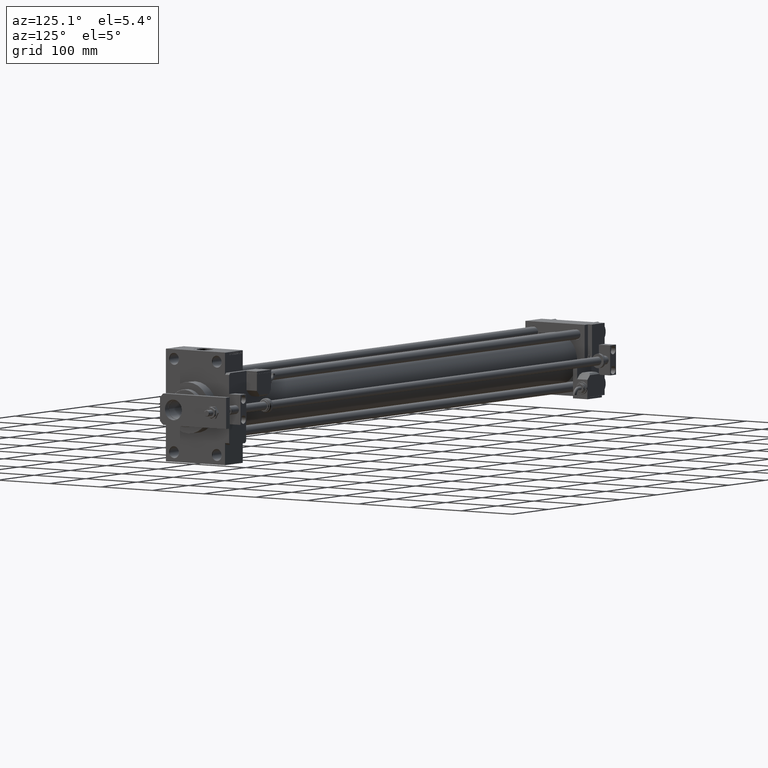
[diagram: clean part render]
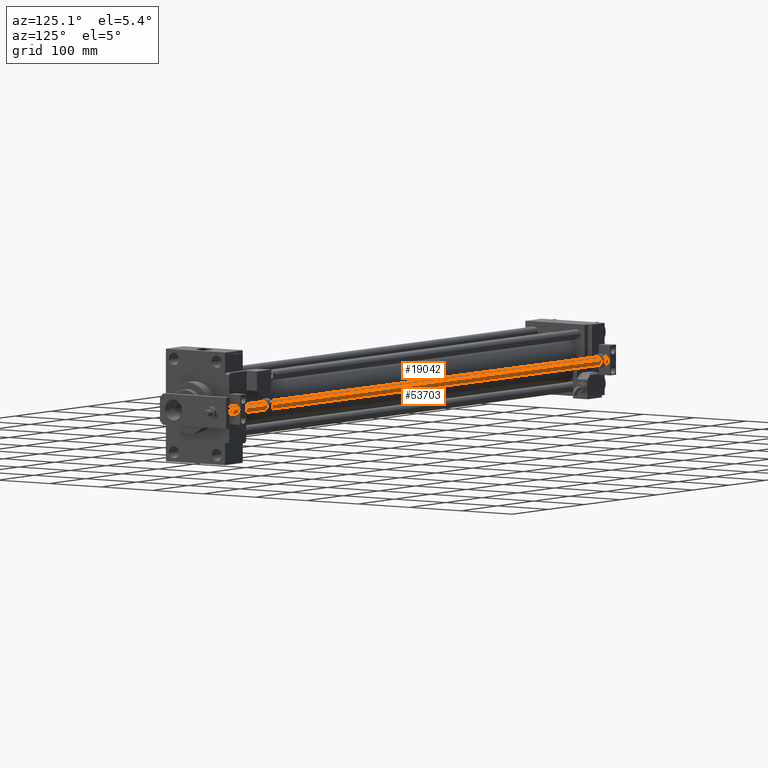
[diagram: same view with one multi-face feature highlighted, each face labeled with its STEP entity id]
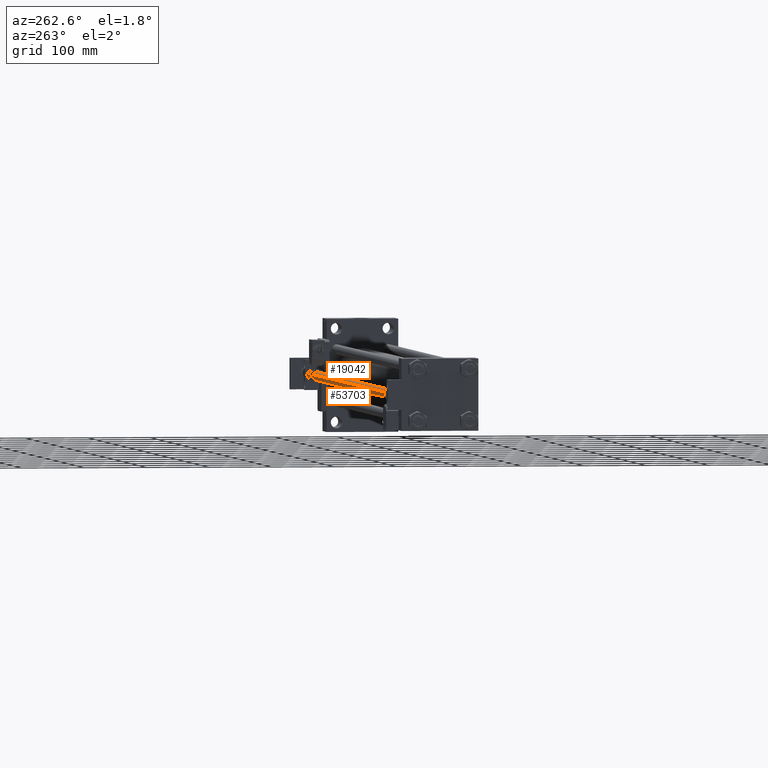
[diagram: same view with one multi-face feature highlighted, each face labeled with its STEP entity id]
A machine part, auxiliary view. The highlighted faces form ONE feature: a constant-radius fillet chain: 2 tangent blend faces with common blend radius 7 mm. The faces share edges in the B-rep.
A second angle (auxiliary view) of the same feature is appended — it is thin or edge-on in the first view.
Their STEP definitions:
[1] entity #53703 (Cylinder):
#592 = DIRECTION ( 'NONE',  ( -0.000000000000000000, -0.000000000000000000, 1.000000000000000000 ) ) ;
#1036 = CARTESIAN_POINT ( 'NONE',  ( 7.000000000000000000, 8.572527594031473190E-16, 0.2999999999999669598 ) ) ;
#1577 = VECTOR ( 'NONE', #36548, 1000.000000000000000 ) ;
#3658 = AXIS2_PLACEMENT_3D ( 'NONE', #14333, #44648, #6189 ) ;
#4226 = CARTESIAN_POINT ( 'NONE',  ( -7.000000000000000000, 0.000000000000000000, 1058.000000000000000 ) ) ;
#5031 = VERTEX_POINT ( 'NONE', #15466 ) ;
#6189 = DIRECTION ( 'NONE',  ( 1.000000000000000000, 0.000000000000000000, 0.000000000000000000 ) ) ;
#6345 = EDGE_CURVE ( 'NONE', #41818, #44196, #12924, .T. ) ;
#6495 = AXIS2_PLACEMENT_3D ( 'NONE', #47116, #39528, #34746 ) ;
#7400 = CARTESIAN_POINT ( 'NONE',  ( -7.000000000000000000, 0.000000000000000000, 0.2999999999999669598 ) ) ;
#9061 = CIRCLE ( 'NONE', #40446, 7.000000000000000000 ) ;
#9952 = ORIENTED_EDGE ( 'NONE', *, *, #50202, .F. ) ;
#11937 = EDGE_CURVE ( 'NONE', #5031, #22187, #44984, .T. ) ;
#12924 = LINE ( 'NONE', #4226, #40055 ) ;
#14333 = CARTESIAN_POINT ( 'NONE',  ( 0.000000000000000000, 0.000000000000000000, 1058.000000000000000 ) ) ;
#15127 = ORIENTED_EDGE ( 'NONE', *, *, #11937, .T. ) ;
#15466 = CARTESIAN_POINT ( 'NONE',  ( 7.000000000000000000, 8.572527594031473190E-16, 1058.000000000000000 ) ) ;
#21350 = DIRECTION ( 'NONE',  ( -0.000000000000000000, -0.000000000000000000, -1.000000000000000000 ) ) ;
#22187 = VERTEX_POINT ( 'NONE', #1036 ) ;
#22745 = DIRECTION ( 'NONE',  ( 1.000000000000000000, 0.000000000000000000, 0.000000000000000000 ) ) ;
#24401 = ORIENTED_EDGE ( 'NONE', *, *, #6345, .F. ) ;
#26683 = CARTESIAN_POINT ( 'NONE',  ( 0.000000000000000000, 0.000000000000000000, 0.2999999999999669598 ) ) ;
#29993 = CYLINDRICAL_SURFACE ( 'NONE', #6495, 7.000000000000000000 ) ;
#34746 = DIRECTION ( 'NONE',  ( -1.000000000000000000, 0.000000000000000000, 0.000000000000000000 ) ) ;
#35165 = EDGE_CURVE ( 'NONE', #22187, #44196, #9061, .T. ) ;
#36548 = DIRECTION ( 'NONE',  ( -0.000000000000000000, -0.000000000000000000, -1.000000000000000000 ) ) ;
#39528 = DIRECTION ( 'NONE',  ( -0.000000000000000000, -0.000000000000000000, -1.000000000000000000 ) ) ;
#40055 = VECTOR ( 'NONE', #21350, 1000.000000000000000 ) ;
#40446 = AXIS2_PLACEMENT_3D ( 'NONE', #26683, #592, #22745 ) ;
#41148 = CARTESIAN_POINT ( 'NONE',  ( -7.000000000000000000, 0.000000000000000000, 1058.000000000000000 ) ) ;
#41818 = VERTEX_POINT ( 'NONE', #41148 ) ;
#42051 = ORIENTED_EDGE ( 'NONE', *, *, #35165, .T. ) ;
#44196 = VERTEX_POINT ( 'NONE', #7400 ) ;
#44648 = DIRECTION ( 'NONE',  ( 0.000000000000000000, 0.000000000000000000, 1.000000000000000000 ) ) ;
#44984 = LINE ( 'NONE', #49462, #1577 ) ;
#47116 = CARTESIAN_POINT ( 'NONE',  ( 0.000000000000000000, 0.000000000000000000, 1058.000000000000000 ) ) ;
#49462 = CARTESIAN_POINT ( 'NONE',  ( 7.000000000000000000, 8.572527594031473190E-16, 1058.000000000000000 ) ) ;
#50202 = EDGE_CURVE ( 'NONE', #5031, #41818, #50306, .T. ) ;
#50306 = CIRCLE ( 'NONE', #3658, 7.000000000000000000 ) ;
#52153 = FACE_OUTER_BOUND ( 'NONE', #54788, .T. ) ;
#53703 = ADVANCED_FACE ( 'NONE', ( #52153 ), #29993, .T. ) ;
#54788 = EDGE_LOOP ( 'NONE', ( #9952, #15127, #42051, #24401 ) ) ;
[2] entity #19042 (Cylinder):
#1036 = CARTESIAN_POINT ( 'NONE',  ( 7.000000000000000000, 8.572527594031473190E-16, 0.2999999999999669598 ) ) ;
#1577 = VECTOR ( 'NONE', #36548, 1000.000000000000000 ) ;
#1936 = DIRECTION ( 'NONE',  ( 0.000000000000000000, 0.000000000000000000, 1.000000000000000000 ) ) ;
#3420 = AXIS2_PLACEMENT_3D ( 'NONE', #38906, #47601, #26528 ) ;
#4226 = CARTESIAN_POINT ( 'NONE',  ( -7.000000000000000000, 0.000000000000000000, 1058.000000000000000 ) ) ;
#4354 = CYLINDRICAL_SURFACE ( 'NONE', #49523, 7.000000000000000000 ) ;
#4934 = ORIENTED_EDGE ( 'NONE', *, *, #23493, .T. ) ;
#5031 = VERTEX_POINT ( 'NONE', #15466 ) ;
#5600 = DIRECTION ( 'NONE',  ( 1.000000000000000000, 0.000000000000000000, 0.000000000000000000 ) ) ;
#6345 = EDGE_CURVE ( 'NONE', #41818, #44196, #12924, .T. ) ;
#7400 = CARTESIAN_POINT ( 'NONE',  ( -7.000000000000000000, 0.000000000000000000, 0.2999999999999669598 ) ) ;
#8307 = CARTESIAN_POINT ( 'NONE',  ( 0.000000000000000000, 0.000000000000000000, 1058.000000000000000 ) ) ;
#11937 = EDGE_CURVE ( 'NONE', #5031, #22187, #44984, .T. ) ;
#12553 = CIRCLE ( 'NONE', #34078, 7.000000000000000000 ) ;
#12924 = LINE ( 'NONE', #4226, #40055 ) ;
#15466 = CARTESIAN_POINT ( 'NONE',  ( 7.000000000000000000, 8.572527594031473190E-16, 1058.000000000000000 ) ) ;
#19042 = ADVANCED_FACE ( 'NONE', ( #30455 ), #4354, .T. ) ;
#20469 = ORIENTED_EDGE ( 'NONE', *, *, #6345, .T. ) ;
#21350 = DIRECTION ( 'NONE',  ( -0.000000000000000000, -0.000000000000000000, -1.000000000000000000 ) ) ;
#21659 = EDGE_LOOP ( 'NONE', ( #27434, #41760, #20469, #4934 ) ) ;
#22187 = VERTEX_POINT ( 'NONE', #1036 ) ;
#23493 = EDGE_CURVE ( 'NONE', #44196, #22187, #27470, .T. ) ;
#23826 = CARTESIAN_POINT ( 'NONE',  ( 0.000000000000000000, 0.000000000000000000, 1058.000000000000000 ) ) ;
#26528 = DIRECTION ( 'NONE',  ( 1.000000000000000000, 0.000000000000000000, 0.000000000000000000 ) ) ;
#27434 = ORIENTED_EDGE ( 'NONE', *, *, #11937, .F. ) ;
#27470 = CIRCLE ( 'NONE', #3420, 7.000000000000000000 ) ;
#30455 = FACE_OUTER_BOUND ( 'NONE', #21659, .T. ) ;
#34078 = AXIS2_PLACEMENT_3D ( 'NONE', #23826, #1936, #5600 ) ;
#36548 = DIRECTION ( 'NONE',  ( -0.000000000000000000, -0.000000000000000000, -1.000000000000000000 ) ) ;
#38906 = CARTESIAN_POINT ( 'NONE',  ( 0.000000000000000000, 0.000000000000000000, 0.2999999999999669598 ) ) ;
#40055 = VECTOR ( 'NONE', #21350, 1000.000000000000000 ) ;
#41148 = CARTESIAN_POINT ( 'NONE',  ( -7.000000000000000000, 0.000000000000000000, 1058.000000000000000 ) ) ;
#41523 = DIRECTION ( 'NONE',  ( -0.000000000000000000, -0.000000000000000000, -1.000000000000000000 ) ) ;
#41760 = ORIENTED_EDGE ( 'NONE', *, *, #45592, .F. ) ;
#41818 = VERTEX_POINT ( 'NONE', #41148 ) ;
#44196 = VERTEX_POINT ( 'NONE', #7400 ) ;
#44984 = LINE ( 'NONE', #49462, #1577 ) ;
#45592 = EDGE_CURVE ( 'NONE', #41818, #5031, #12553, .T. ) ;
#47037 = DIRECTION ( 'NONE',  ( -1.000000000000000000, 0.000000000000000000, 0.000000000000000000 ) ) ;
#47601 = DIRECTION ( 'NONE',  ( -0.000000000000000000, -0.000000000000000000, 1.000000000000000000 ) ) ;
#49462 = CARTESIAN_POINT ( 'NONE',  ( 7.000000000000000000, 8.572527594031473190E-16, 1058.000000000000000 ) ) ;
#49523 = AXIS2_PLACEMENT_3D ( 'NONE', #8307, #41523, #47037 ) ;